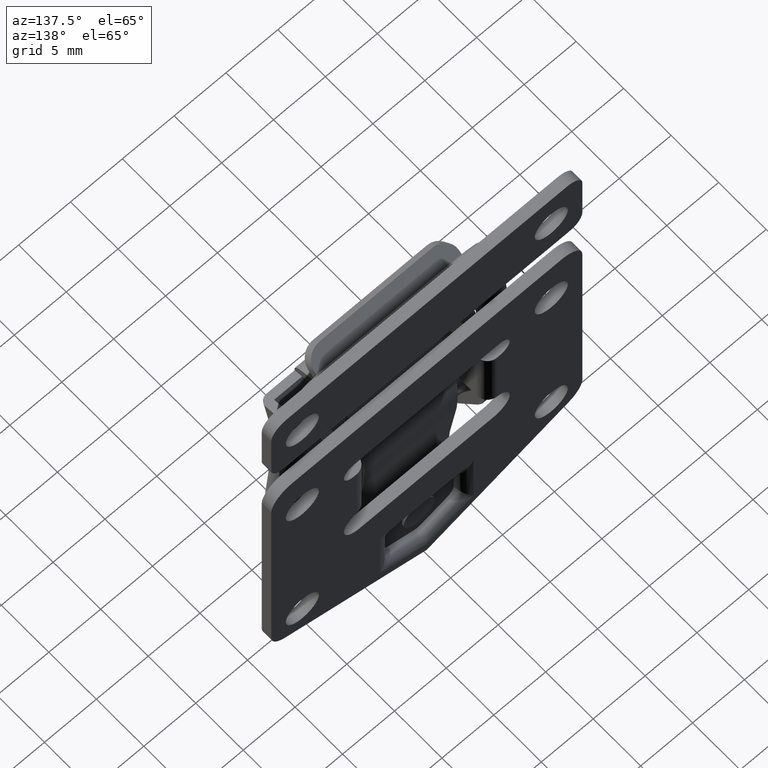
[diagram: clean part render]
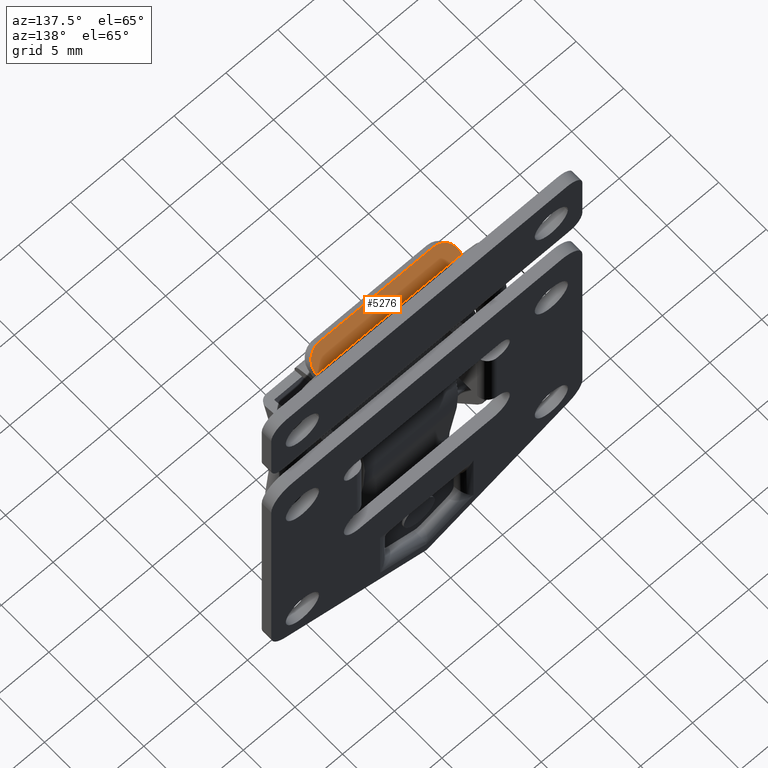
[diagram: same view with one face highlighted and labeled with its STEP entity id]
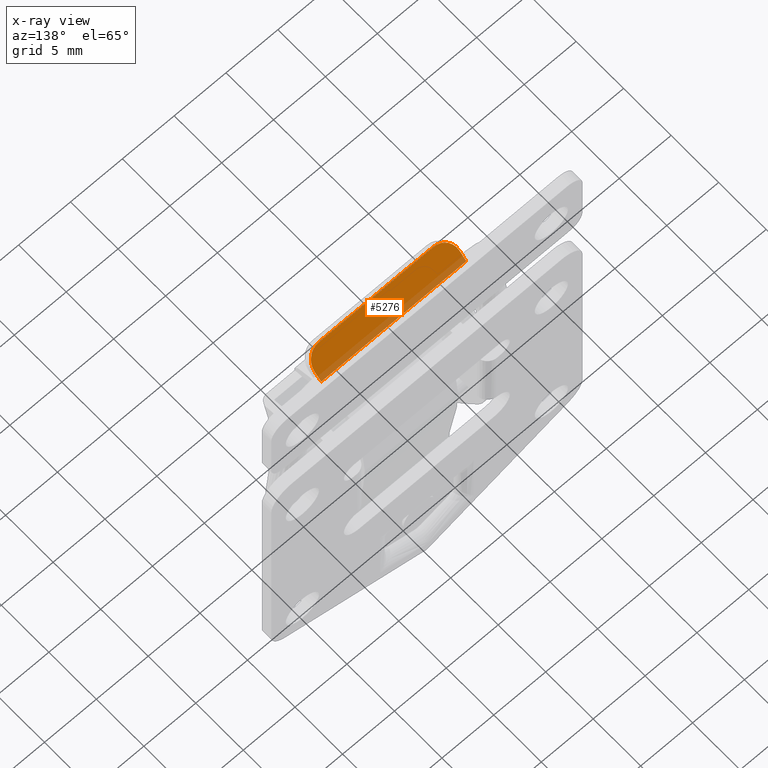
[diagram: x-ray of the same camera — body ghosted, the highlighted face saturated]
A machine part, auxiliary view. The second image highlights one B-rep face of the part: STEP entity #5276.
The next image is the same camera in x-ray: the body ghosted, the highlighted face saturated — about 21% of this face is hidden behind the body in this view.
In plain terms, the highlighted face is a freeform B-spline surface patch.
Its self-contained STEP definition (entity closure, byte-faithful):
#4865=CARTESIAN_POINT('',(-1.711200418837965,-7.0,-0.241529553130478));
#4866=VERTEX_POINT('',#4865);
#4872=CARTESIAN_POINT('',(-2.836747022593235,-5.500000000000000,0.750016900850043));
#4873=VERTEX_POINT('',#4872);
#4874=CARTESIAN_POINT('',(-2.836747022593234,-5.500000000000000,0.750016900850042));
#4875=CARTESIAN_POINT('',(-2.836747022593233,-6.999999999999999,0.750016900850042));
#4876=CARTESIAN_POINT('',(-1.711200418837965,-6.999999999999999,-0.241529553130477));
#4884=(BOUNDED_CURVE()B_SPLINE_CURVE(2,(#4874,#4875,#4876),.UNSPECIFIED.,.F.,.U.)CURVE()GEOMETRIC_REPRESENTATION_ITEM()QUASI_UNIFORM_CURVE()RATIONAL_B_SPLINE_CURVE((1.0,0.707106781186548,1.0))REPRESENTATION_ITEM(''));
#4885=EDGE_CURVE('',#4873,#4866,#4884,.T.);
#4909=CARTESIAN_POINT('',(-1.711200418837965,6.999999999999901,-0.241529553130478));
#4910=VERTEX_POINT('',#4909);
#4911=CARTESIAN_POINT('',(-2.836747022593235,5.500000000000000,0.750016900850043));
#4912=VERTEX_POINT('',#4911);
#4913=CARTESIAN_POINT('',(-1.711200418837965,6.999999999999901,-0.241529553130478));
#4914=CARTESIAN_POINT('',(-2.836747022593234,6.999999454324542,0.750016900850042));
#4915=CARTESIAN_POINT('',(-2.836747022593234,5.500000000000000,0.750016900850042));
#4923=(BOUNDED_CURVE()B_SPLINE_CURVE(2,(#4913,#4914,#4915),.UNSPECIFIED.,.F.,.U.)CURVE()GEOMETRIC_REPRESENTATION_ITEM()QUASI_UNIFORM_CURVE()RATIONAL_B_SPLINE_CURVE((1.0,0.707106909803498,1.0))REPRESENTATION_ITEM(''));
#4924=EDGE_CURVE('',#4910,#4912,#4923,.T.);
#5102=CARTESIAN_POINT('',(-0.985191617418465,-7.0,-0.881104538479264));
#5103=VERTEX_POINT('',#5102);
#5104=CARTESIAN_POINT('',(-1.711200418837965,-7.0,-0.241529553130478));
#5105=CARTESIAN_POINT('',(-0.985191617418465,-7.0,-0.881104538479264));
#5106=QUASI_UNIFORM_CURVE('',1,(#5104,#5105),.UNSPECIFIED.,.F.,.U.);
#5107=EDGE_CURVE('',#4866,#5103,#5106,.T.);
#5207=CARTESIAN_POINT('',(-0.985191617418465,6.999999999999901,-0.881104538479264));
#5208=VERTEX_POINT('',#5207);
#5209=CARTESIAN_POINT('',(-0.985191617418465,6.999999999999901,-0.881104538479264));
#5210=CARTESIAN_POINT('',(-1.711200418837965,6.999999999999901,-0.241529553130478));
#5211=QUASI_UNIFORM_CURVE('',1,(#5209,#5210),.UNSPECIFIED.,.F.,.U.);
#5212=EDGE_CURVE('',#5208,#4910,#5211,.T.);
#5255=CARTESIAN_POINT('',(-0.892706452514792,-7.699299972865279,-0.962579030073020));
#5256=CARTESIAN_POINT('',(-2.929232121280126,-7.699299972865279,0.831491334110351));
#5257=CARTESIAN_POINT('',(-0.892706452514792,7.699300348374440,-0.962579030073020));
#5258=CARTESIAN_POINT('',(-2.929232121280126,7.699300348374439,0.831491334110351));
#5259=B_SPLINE_SURFACE_WITH_KNOTS('',1,1,((#5255,#5257),(#5256,#5258)),.UNSPECIFIED.,.F.,.F.,.U.,(2,2),(2,2),(0.0,2.714060660925092),(0.0,15.398600321239719),.UNSPECIFIED.);
#5260=ORIENTED_EDGE('',*,*,#5212,.T.);
#5261=ORIENTED_EDGE('',*,*,#4924,.T.);
#5262=CARTESIAN_POINT('',(-2.836747022593235,5.500000000000000,0.750016900850043));
#5263=CARTESIAN_POINT('',(-2.836747022593235,-5.500000000000000,0.750016900850043));
#5264=QUASI_UNIFORM_CURVE('',1,(#5262,#5263),.UNSPECIFIED.,.F.,.U.);
#5265=EDGE_CURVE('',#4912,#4873,#5264,.T.);
#5266=ORIENTED_EDGE('',*,*,#5265,.T.);
#5267=ORIENTED_EDGE('',*,*,#4885,.T.);
#5268=ORIENTED_EDGE('',*,*,#5107,.T.);
#5269=CARTESIAN_POINT('',(-0.985191617418465,6.999999999999901,-0.881104538479264));
#5270=CARTESIAN_POINT('',(-0.985191617418465,-7.0,-0.881104538479264));
#5271=QUASI_UNIFORM_CURVE('',1,(#5269,#5270),.UNSPECIFIED.,.F.,.U.);
#5272=EDGE_CURVE('',#5208,#5103,#5271,.T.);
#5273=ORIENTED_EDGE('',*,*,#5272,.F.);
#5274=EDGE_LOOP('',(#5260,#5261,#5266,#5267,#5268,#5273));
#5275=FACE_OUTER_BOUND('',#5274,.T.);
#5276=ADVANCED_FACE('',(#5275),#5259,.F.);